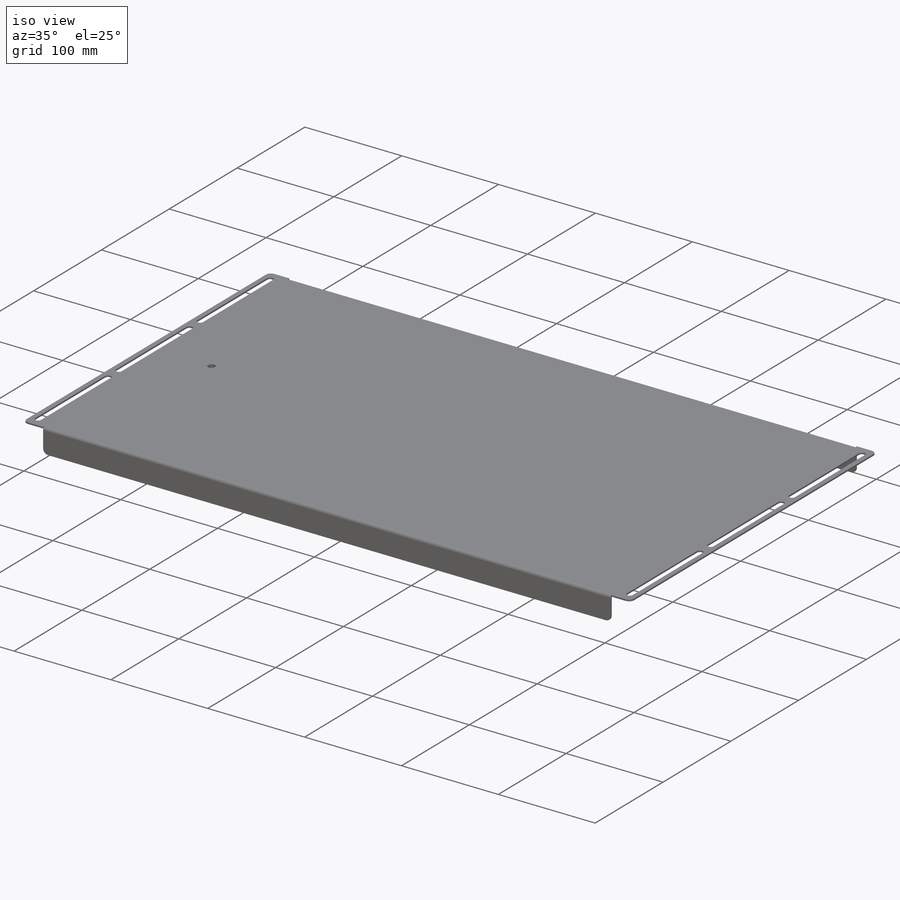
[diagram: iso view]
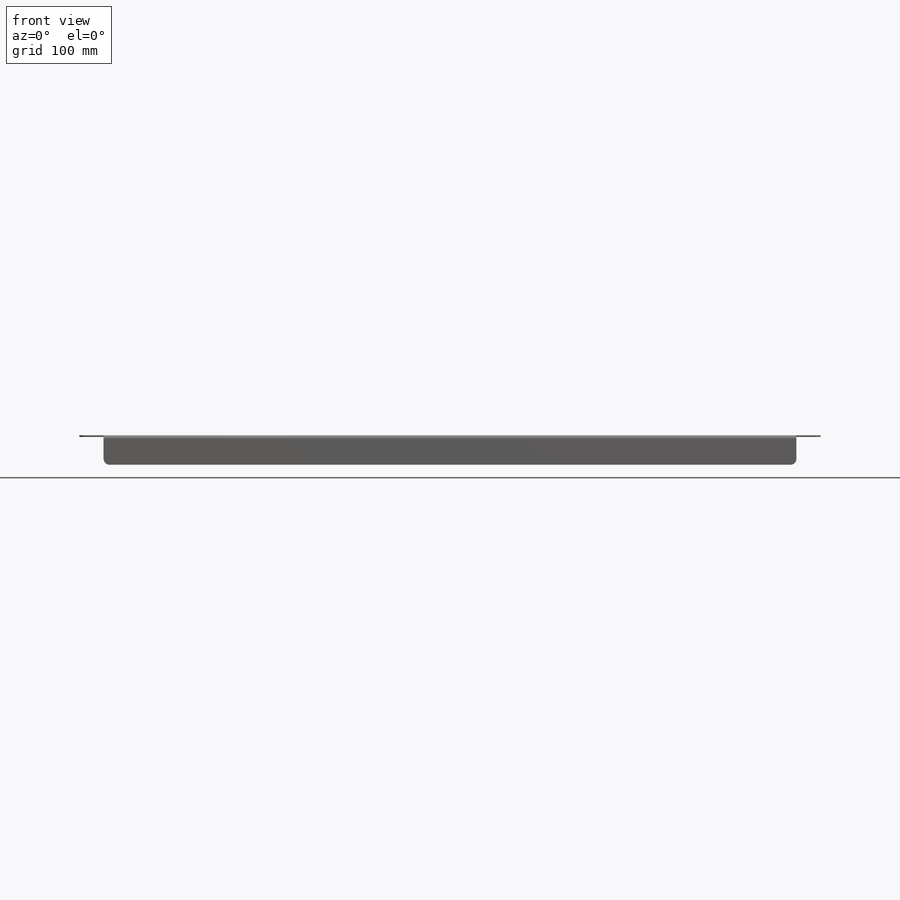
[diagram: front view]
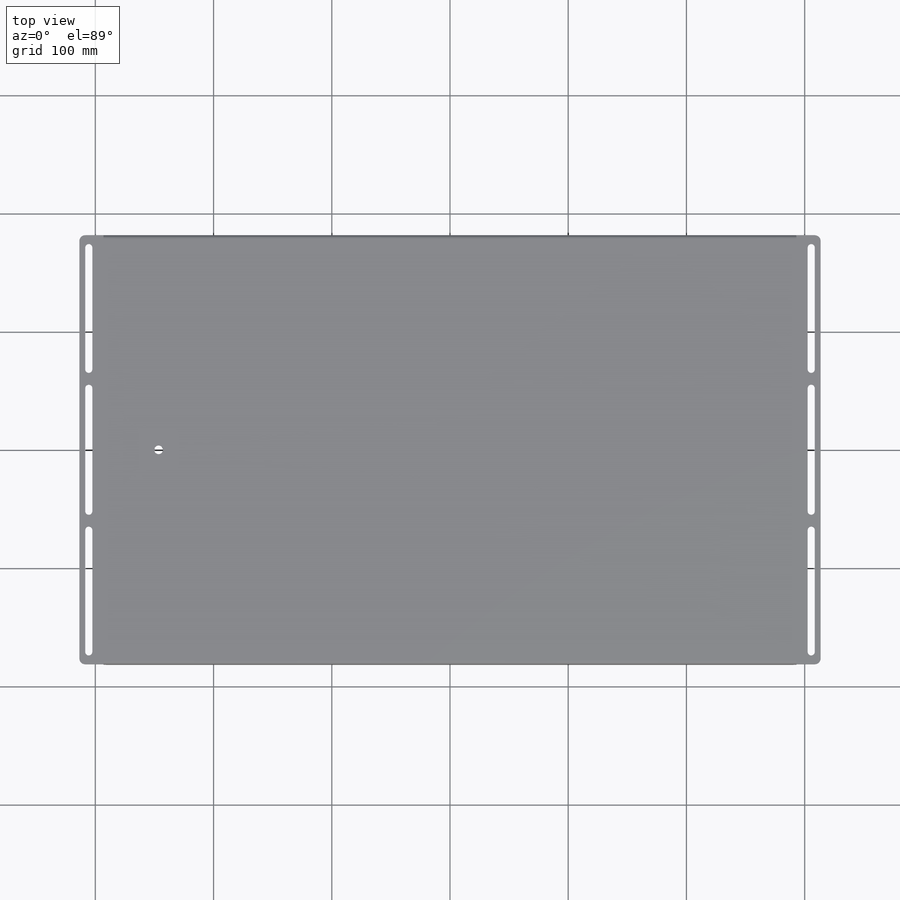
[diagram: top view]
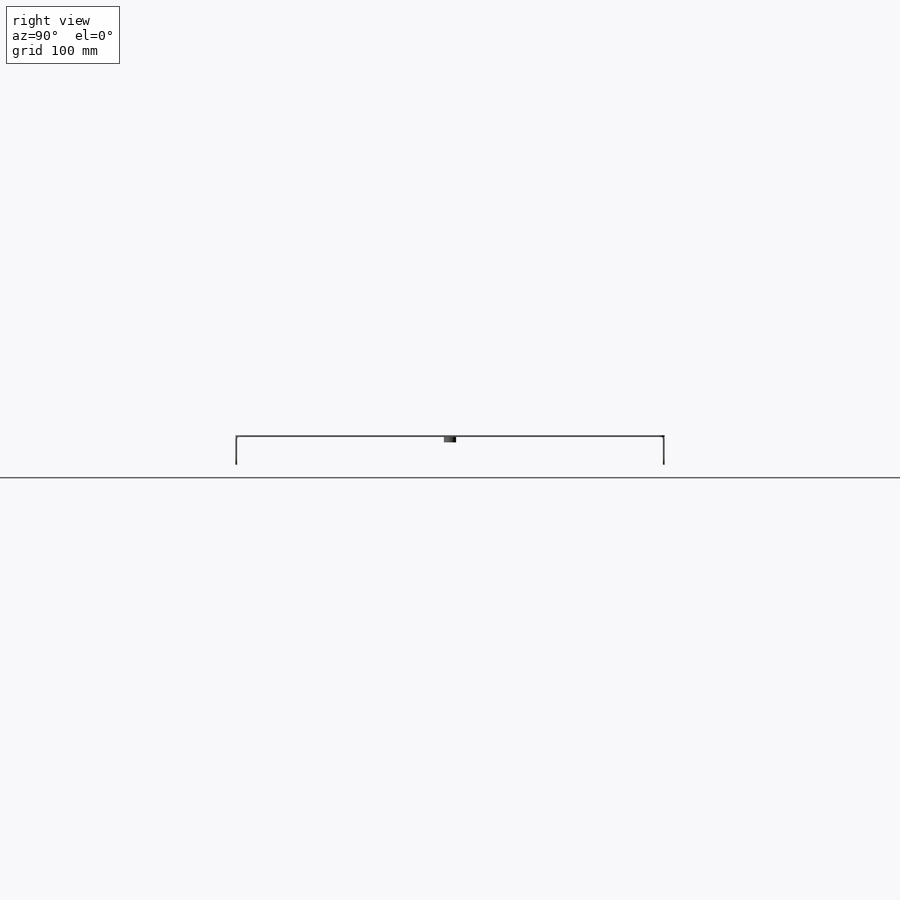
[diagram: right view]
SOLIDWORKS PART (.sldprt)
format: sldprt  version: not decoded by parser v0  size: 971,776 bytes
history: native  units: mm
features: sketch x11, plane x6, sheet_metal_op x3, material x2, fillet x2, extrude x2, cut_extrude x1 + 1 further entry (+18 scaffold rows collapsed; 1 parser-record rows omitted)
feature tree (47):
  scaffold x18  (default folders/planes/origin — collapsed)
  material  "DX51 D+Z275"
  material  "Material <nicht festgelegt>"
  plane  "Ebene vorne"
  plane  "Ebene oben"
  plane  "Ebene rechts"
  sketch  "Skizze1"  dims[D1=627.0mm D2=363.0mm]
  sheet_metal_op  "Blech1"
  sheet_metal_op  "Basis-Blech1"
  sketch  "Skizze6"  dims[D1=20.5mm D2=20.5mm D3=25.0mm]
  sketch  "Skizze7"  dims[D1=1.5mm D4=90.0deg D5=1.0 D8=0.0mm D9=0.0mm]
  sheet_metal_op  "Kantenbiegung2"
  sketch  "Skizze8"  dims[D1=10.5mm D2=10.5mm D3=16.0mm D4=16.0mm D5=6.0mm D6=8.0mm D7=103.0mm D8=104.0mm D9=103.0mm]
  cut_extrude  "Schnitt-Linear austragen1"  [1 undecoded]
  fillet  "Verrundung1"  Radius=5mm
  sketch  "Skizze9"  dims[c1.D1=67.0mm c1.D2=~176.777171mm c1.D3=~70.710678mm c2.D1=67.0mm]
  plane  "Ebene vorne"
  plane  "Ebene oben"
  plane  "Ebene rechts"
  sketch  "Skizze1"  dims[D1=50.0mm]
  extrude  "Linear austragen1"  Depth=5mm
  sketch  "Skizze2"  dims[D1_1=7.4mm D2=1.0mm D3=0.3mm D4=0.3mm]
  extrude  "Linear austragen2"  Depth=6mm
  sketch  "Orientation Sketch"
  "Abwicklung1"
  sketch  "Biegung-Linien1"
  sketch  "Rahmen1"
  fillet  "Abwickeln-<Kantenbiegung2>1"  [1 undecoded]
  parser-record x1  (decoder bookkeeping rows leaked as tree rows — omitted from the tree; the rows remain in map.json)
  sketch  "Skizze9-1"  dims[c1.D1=67.0mm c1.D2=~176.777171mm c1.D3=~70.710678mm c2.D1=67.0mm]
decode coverage: 11 of 19 modeling features carry decoded parameters; 1 rows unclassified (native names shown)
note: ~ marks probable driven/reference dimensions
note: 2 parameter values undecoded
note: suppression state not decoded; provenance and decode notes live in map.json
